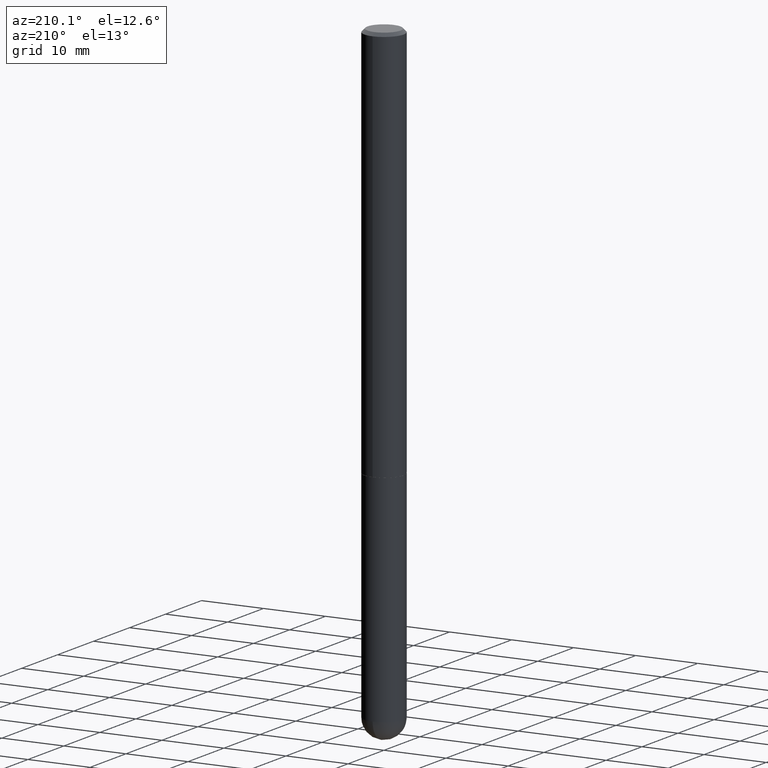
[diagram: clean part render]
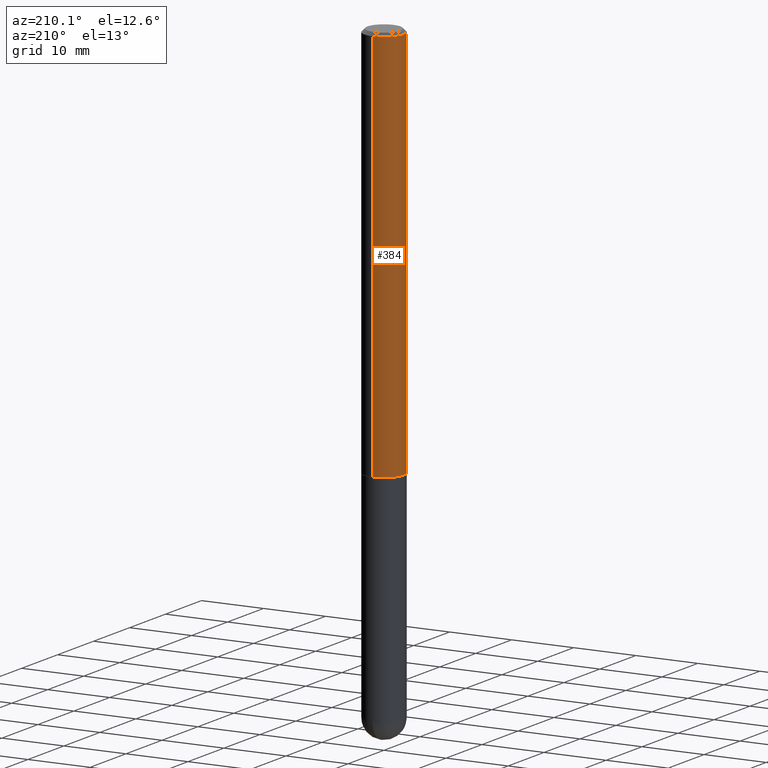
[diagram: same view with one face highlighted and labeled with its STEP entity id]
A machine part, auxiliary view. The second image highlights one B-rep face of the part: STEP entity #384.
In plain terms, the highlighted cylindrical surface (edge-blend (fillet) strip) has radius 3.175 mm, axis along (-0, 0, 1).
Its self-contained STEP definition (entity closure, byte-faithful):
#1 = LINE ( 'NONE', #250, #222 ) ;
#4 = DIRECTION ( 'NONE',  ( -2.446028636923791301E-29, 3.490679629361805041E-15, 1.000000000000000000 ) ) ;
#38 = AXIS2_PLACEMENT_3D ( 'NONE', #199, #358, #353 ) ;
#74 = AXIS2_PLACEMENT_3D ( 'NONE', #107, #286, #160 ) ;
#92 = FACE_OUTER_BOUND ( 'NONE', #373, .T. ) ;
#97 = EDGE_CURVE ( 'NONE', #148, #364, #186, .T. ) ;
#102 = EDGE_CURVE ( 'NONE', #252, #364, #1, .T. ) ;
#107 = CARTESIAN_POINT ( 'NONE',  ( 4.892057273847589328E-31, -6.981359258723618414E-17, -0.02000000000000002470 ) ) ;
#117 = DIRECTION ( 'NONE',  ( -6.982962677686266711E-15, -1.000000000000000000, 3.490679629361805435E-15 ) ) ;
#120 = ORIENTED_EDGE ( 'NONE', *, *, #257, .T. ) ;
#148 = VERTEX_POINT ( 'NONE', #277 ) ;
#160 = DIRECTION ( 'NONE',  ( -6.982962677686265922E-15, -1.000000000000000000, 3.483106191921935554E-15 ) ) ;
#177 = CARTESIAN_POINT ( 'NONE',  ( -8.575622497214408537E-16, -0.1250000000000000555, -0.01999999999999959102 ) ) ;
#181 = VECTOR ( 'NONE', #394, 39.37007874015748143 ) ;
#186 = CIRCLE ( 'NONE', #74, 0.1250000000000000000 ) ;
#199 = CARTESIAN_POINT ( 'NONE',  ( 6.112625563672555012E-29, -8.723208393775151741E-15, -2.499000000000000110 ) ) ;
#212 = DIRECTION ( 'NONE',  ( -2.446028636923791301E-29, 3.490679629361805041E-15, 1.000000000000000000 ) ) ;
#215 = ORIENTED_EDGE ( 'NONE', *, *, #97, .F. ) ;
#217 = CYLINDRICAL_SURFACE ( 'NONE', #386, 0.1250000000000001388 ) ;
#222 = VECTOR ( 'NONE', #4, 39.37007874015748143 ) ;
#243 = LINE ( 'NONE', #297, #181 ) ;
#244 = ORIENTED_EDGE ( 'NONE', *, *, #383, .F. ) ;
#245 = CARTESIAN_POINT ( 'NONE',  ( 0.000000000000000000, 0.000000000000000000, 0.000000000000000000 ) ) ;
#246 = VERTEX_POINT ( 'NONE', #260 ) ;
#250 = CARTESIAN_POINT ( 'NONE',  ( -8.728703347107843249E-16, -0.1250000000000001388, 4.363349536702261725E-16 ) ) ;
#252 = VERTEX_POINT ( 'NONE', #387 ) ;
#257 = EDGE_CURVE ( 'NONE', #246, #252, #377, .T. ) ;
#260 = CARTESIAN_POINT ( 'NONE',  ( 8.881784197001575756E-16, 0.1249999999999915762, -2.499000000000000998 ) ) ;
#277 = CARTESIAN_POINT ( 'NONE',  ( 8.728703347107837333E-16, 0.1249999999999999306, -0.02000000000000046185 ) ) ;
#286 = DIRECTION ( 'NONE',  ( -2.446028636923791301E-29, 3.490679629361805041E-15, 1.000000000000000000 ) ) ;
#297 = CARTESIAN_POINT ( 'NONE',  ( 8.881784197001262184E-16, 0.1250000000000001388, -4.363349536702261725E-16 ) ) ;
#339 = ORIENTED_EDGE ( 'NONE', *, *, #102, .T. ) ;
#353 = DIRECTION ( 'NONE',  ( -6.982962677686265922E-15, -1.000000000000000000, 4.370956789862810105E-15 ) ) ;
#358 = DIRECTION ( 'NONE',  ( -2.446028636923791301E-29, 3.490679629361805041E-15, 1.000000000000000000 ) ) ;
#364 = VERTEX_POINT ( 'NONE', #177 ) ;
#373 = EDGE_LOOP ( 'NONE', ( #244, #120, #339, #215 ) ) ;
#377 = CIRCLE ( 'NONE', #38, 0.1250000000000003053 ) ;
#383 = EDGE_CURVE ( 'NONE', #246, #148, #243, .T. ) ;
#384 = ADVANCED_FACE ( 'NONE', ( #92 ), #217, .T. ) ;
#386 = AXIS2_PLACEMENT_3D ( 'NONE', #245, #212, #117 ) ;
#387 = CARTESIAN_POINT ( 'NONE',  ( -8.728703347107242729E-16, -0.1250000000000090206, -2.498999999999999666 ) ) ;
#394 = DIRECTION ( 'NONE',  ( -2.446028636923791301E-29, 3.490679629361805041E-15, 1.000000000000000000 ) ) ;